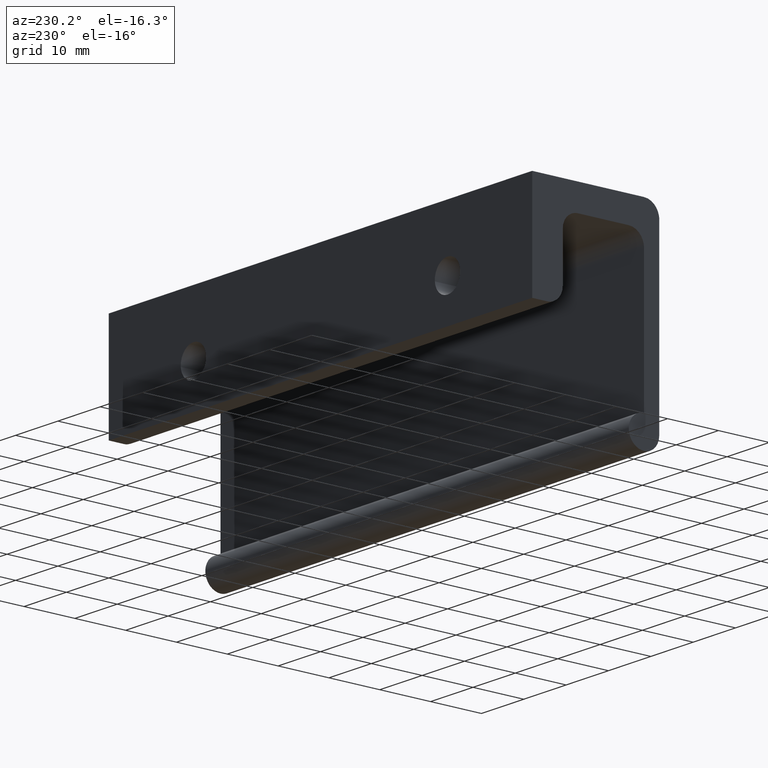
[diagram: clean part render]
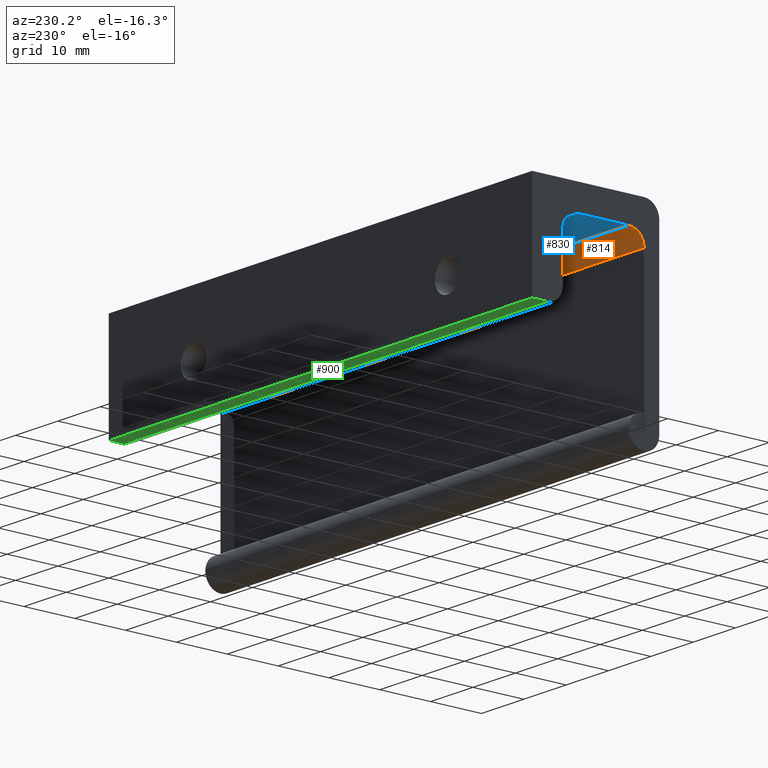
[diagram: same view with three faces highlighted in distinct colors, each labeled with its STEP entity id]
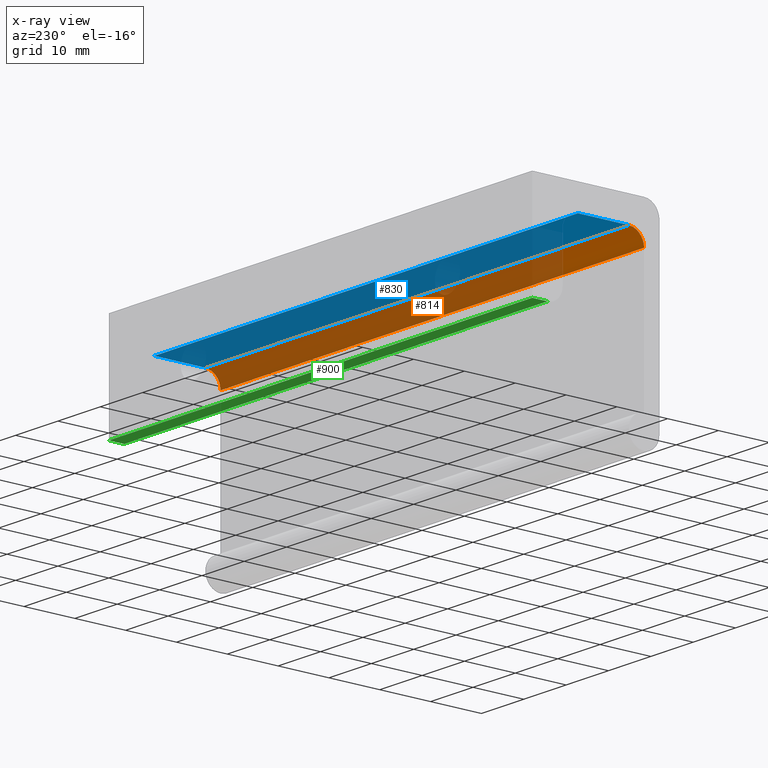
[diagram: x-ray of the same camera — body ghosted, the three highlighted faces saturated]
A machine part, auxiliary view with three faces highlighted in distinct colors.
The next image is the same camera in x-ray (body ghosted, the three faces saturated) — at least one of them is partly hidden behind the body in this view.
Their STEP definitions:

[orange] entity #814 — the highlighted face is a freeform B-spline surface patch.
#466=CARTESIAN_POINT('',(0.0,-19.0,-5.0));
#467=VERTEX_POINT('',#466);
#473=CARTESIAN_POINT('',(0.0,-22.0,-8.0));
#474=VERTEX_POINT('',#473);
#475=CARTESIAN_POINT('',(0.0,-19.0,-5.0));
#476=CARTESIAN_POINT('',(0.0,-22.000000000000007,-5.000000000000001));
#477=CARTESIAN_POINT('',(0.0,-22.0,-8.0));
#485=(BOUNDED_CURVE()B_SPLINE_CURVE(2,(#475,#476,#477),.UNSPECIFIED.,.F.,.U.)CURVE()GEOMETRIC_REPRESENTATION_ITEM()QUASI_UNIFORM_CURVE()RATIONAL_B_SPLINE_CURVE((1.0,0.707106781186548,1.0))REPRESENTATION_ITEM(''));
#486=EDGE_CURVE('',#467,#474,#485,.T.);
#606=CARTESIAN_POINT('',(100.0,-22.0,-8.0));
#607=VERTEX_POINT('',#606);
#613=CARTESIAN_POINT('',(100.0,-19.0,-5.0));
#614=VERTEX_POINT('',#613);
#615=CARTESIAN_POINT('',(100.0,-19.0,-5.0));
#616=CARTESIAN_POINT('',(100.0,-22.000000000000007,-5.000000000000001));
#617=CARTESIAN_POINT('',(100.0,-22.0,-8.0));
#625=(BOUNDED_CURVE()B_SPLINE_CURVE(2,(#615,#616,#617),.UNSPECIFIED.,.F.,.U.)CURVE()GEOMETRIC_REPRESENTATION_ITEM()QUASI_UNIFORM_CURVE()RATIONAL_B_SPLINE_CURVE((1.0,0.707106781186548,1.0))REPRESENTATION_ITEM(''));
#626=EDGE_CURVE('',#614,#607,#625,.T.);
#780=CARTESIAN_POINT('',(100.0,-22.0,-8.0));
#781=CARTESIAN_POINT('',(0.0,-22.0,-8.0));
#782=QUASI_UNIFORM_CURVE('',1,(#780,#781),.UNSPECIFIED.,.F.,.U.);
#783=EDGE_CURVE('',#607,#474,#782,.T.);
#790=CARTESIAN_POINT('',(102.500000000000000,-18.973820393504880,-5.000114230807487));
#791=CARTESIAN_POINT('',(-2.562500000000000,-18.973820393504880,-5.000114230807487));
#792=CARTESIAN_POINT('',(102.500000000000030,-22.190804026035256,-4.972040039961358));
#793=CARTESIAN_POINT('',(-2.562500000000000,-22.190804026035256,-4.972040039961358));
#794=CARTESIAN_POINT('',(102.500000000000000,-21.994404395265601,-8.183145618604566));
#795=CARTESIAN_POINT('',(-2.562500000000000,-21.994404395265601,-8.183145618604566));
#803=(BOUNDED_SURFACE()B_SPLINE_SURFACE(1,2,((#790,#792,#794),(#791,#793,#795)),.UNSPECIFIED.,.F.,.F.,.U.)B_SPLINE_SURFACE_WITH_KNOTS((2,2),(3,3),(0.0,105.062500000000000),(0.0,5.217748499531194),.UNSPECIFIED.)GEOMETRIC_REPRESENTATION_ITEM()RATIONAL_B_SPLINE_SURFACE(((1.0,0.681998360062499,1.0),(1.0,0.681998360062499,1.0)))REPRESENTATION_ITEM('')SURFACE());
#804=ORIENTED_EDGE('',*,*,#486,.F.);
#805=CARTESIAN_POINT('',(100.0,-19.0,-5.0));
#806=CARTESIAN_POINT('',(0.0,-19.0,-5.0));
#807=QUASI_UNIFORM_CURVE('',1,(#805,#806),.UNSPECIFIED.,.F.,.U.);
#808=EDGE_CURVE('',#614,#467,#807,.T.);
#809=ORIENTED_EDGE('',*,*,#808,.F.);
#810=ORIENTED_EDGE('',*,*,#626,.T.);
#811=ORIENTED_EDGE('',*,*,#783,.T.);
#812=EDGE_LOOP('',(#804,#809,#810,#811));
#813=FACE_OUTER_BOUND('',#812,.T.);
#814=ADVANCED_FACE('',(#813),#803,.F.);

[blue] entity #830 — the highlighted face is a freeform B-spline surface patch.
#451=CARTESIAN_POINT('',(0.0,-9.0,-5.0));
#452=VERTEX_POINT('',#451);
#466=CARTESIAN_POINT('',(0.0,-19.0,-5.0));
#467=VERTEX_POINT('',#466);
#468=CARTESIAN_POINT('',(0.0,-9.0,-5.0));
#469=CARTESIAN_POINT('',(0.0,-19.0,-5.0));
#470=QUASI_UNIFORM_CURVE('',1,(#468,#469),.UNSPECIFIED.,.F.,.U.);
#471=EDGE_CURVE('',#452,#467,#470,.T.);
#613=CARTESIAN_POINT('',(100.0,-19.0,-5.0));
#614=VERTEX_POINT('',#613);
#628=CARTESIAN_POINT('',(100.0,-9.0,-5.0));
#629=VERTEX_POINT('',#628);
#630=CARTESIAN_POINT('',(100.0,-9.0,-5.0));
#631=CARTESIAN_POINT('',(100.0,-19.0,-5.0));
#632=QUASI_UNIFORM_CURVE('',1,(#630,#631),.UNSPECIFIED.,.F.,.U.);
#633=EDGE_CURVE('',#629,#614,#632,.T.);
#805=CARTESIAN_POINT('',(100.0,-19.0,-5.0));
#806=CARTESIAN_POINT('',(0.0,-19.0,-5.0));
#807=QUASI_UNIFORM_CURVE('',1,(#805,#806),.UNSPECIFIED.,.F.,.U.);
#808=EDGE_CURVE('',#614,#467,#807,.T.);
#815=CARTESIAN_POINT('',(104.994999806180600,-19.499499980618062,-5.0));
#816=CARTESIAN_POINT('',(-4.995002488389611,-19.499499980618062,-5.0));
#817=CARTESIAN_POINT('',(104.994999806180600,-8.500499751161037,-5.0));
#818=CARTESIAN_POINT('',(-4.995002488389611,-8.500499751161037,-5.0));
#819=B_SPLINE_SURFACE_WITH_KNOTS('',1,1,((#815,#817),(#816,#818)),.UNSPECIFIED.,.F.,.F.,.U.,(2,2),(2,2),(0.0,109.990002294570200),(0.0,10.999000229457019),.UNSPECIFIED.);
#820=ORIENTED_EDGE('',*,*,#471,.F.);
#821=CARTESIAN_POINT('',(100.0,-9.0,-5.0));
#822=CARTESIAN_POINT('',(0.0,-9.0,-5.0));
#823=QUASI_UNIFORM_CURVE('',1,(#821,#822),.UNSPECIFIED.,.F.,.U.);
#824=EDGE_CURVE('',#629,#452,#823,.T.);
#825=ORIENTED_EDGE('',*,*,#824,.F.);
#826=ORIENTED_EDGE('',*,*,#633,.T.);
#827=ORIENTED_EDGE('',*,*,#808,.T.);
#828=EDGE_LOOP('',(#820,#825,#826,#827));
#829=FACE_OUTER_BOUND('',#828,.T.);
#830=ADVANCED_FACE('',(#829),#819,.T.);

[green] entity #900 — the highlighted face is a freeform B-spline surface patch.
#415=CARTESIAN_POINT('',(0.0,0.0,-20.0));
#416=VERTEX_POINT('',#415);
#422=CARTESIAN_POINT('',(0.0,-3.0,-20.0));
#423=VERTEX_POINT('',#422);
#424=CARTESIAN_POINT('',(0.0,0.0,-20.0));
#425=CARTESIAN_POINT('',(0.0,-3.0,-20.0));
#426=QUASI_UNIFORM_CURVE('',1,(#424,#425),.UNSPECIFIED.,.F.,.U.);
#427=EDGE_CURVE('',#416,#423,#426,.T.);
#551=CARTESIAN_POINT('',(100.0,0.0,-20.0));
#552=VERTEX_POINT('',#551);
#657=CARTESIAN_POINT('',(100.0,-3.0,-20.0));
#658=VERTEX_POINT('',#657);
#672=CARTESIAN_POINT('',(100.0,0.0,-20.0));
#673=CARTESIAN_POINT('',(100.0,-3.0,-20.0));
#674=QUASI_UNIFORM_CURVE('',1,(#672,#673),.UNSPECIFIED.,.F.,.U.);
#675=EDGE_CURVE('',#552,#658,#674,.T.);
#871=CARTESIAN_POINT('',(100.0,-3.0,-20.0));
#872=CARTESIAN_POINT('',(0.0,-3.0,-20.0));
#873=QUASI_UNIFORM_CURVE('',1,(#871,#872),.UNSPECIFIED.,.F.,.U.);
#874=EDGE_CURVE('',#658,#423,#873,.T.);
#885=CARTESIAN_POINT('',(104.994999806180600,-3.149849994185419,-20.0));
#886=CARTESIAN_POINT('',(-4.995002488389611,-3.149849994185419,-20.0));
#887=CARTESIAN_POINT('',(104.994999806180600,0.149850074651688,-20.0));
#888=CARTESIAN_POINT('',(-4.995002488389611,0.149850074651688,-20.0));
#889=B_SPLINE_SURFACE_WITH_KNOTS('',1,1,((#885,#887),(#886,#888)),.UNSPECIFIED.,.F.,.F.,.U.,(2,2),(2,2),(0.0,109.990002294570200),(0.0,3.299700068837107),.UNSPECIFIED.);
#890=ORIENTED_EDGE('',*,*,#427,.F.);
#891=CARTESIAN_POINT('',(100.0,0.0,-20.0));
#892=CARTESIAN_POINT('',(0.0,0.0,-20.0));
#893=QUASI_UNIFORM_CURVE('',1,(#891,#892),.UNSPECIFIED.,.F.,.U.);
#894=EDGE_CURVE('',#552,#416,#893,.T.);
#895=ORIENTED_EDGE('',*,*,#894,.F.);
#896=ORIENTED_EDGE('',*,*,#675,.T.);
#897=ORIENTED_EDGE('',*,*,#874,.T.);
#898=EDGE_LOOP('',(#890,#895,#896,#897));
#899=FACE_OUTER_BOUND('',#898,.T.);
#900=ADVANCED_FACE('',(#899),#889,.T.);